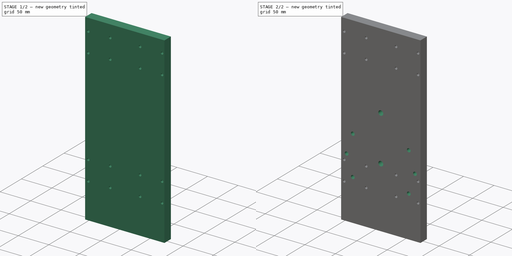
[diagram: build sequence overview — one tinted view per stage of 2, left to right]
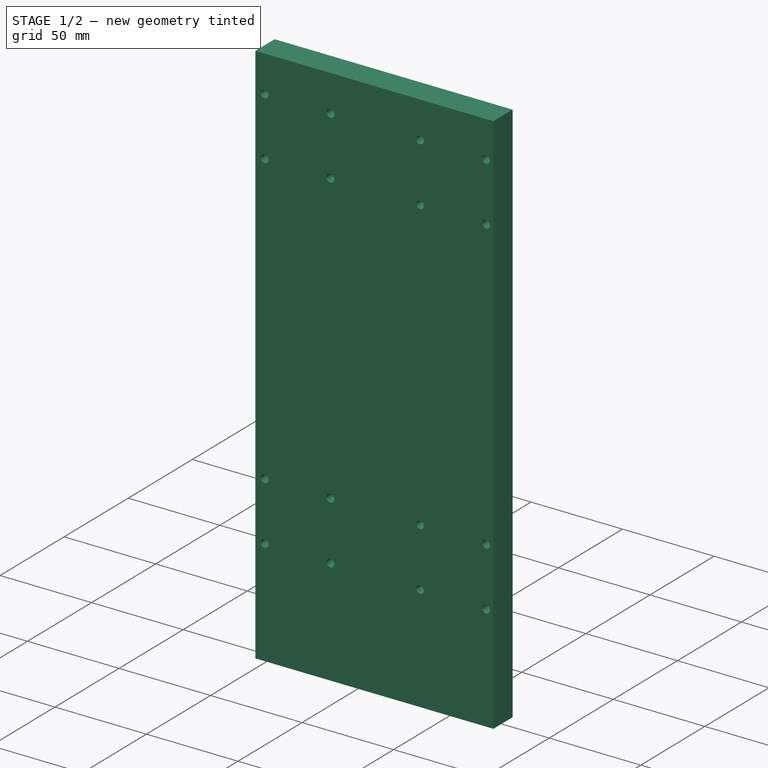
[diagram: stage 1 of 2 — iso view after this stage's code; geometry added in this stage tinted green]
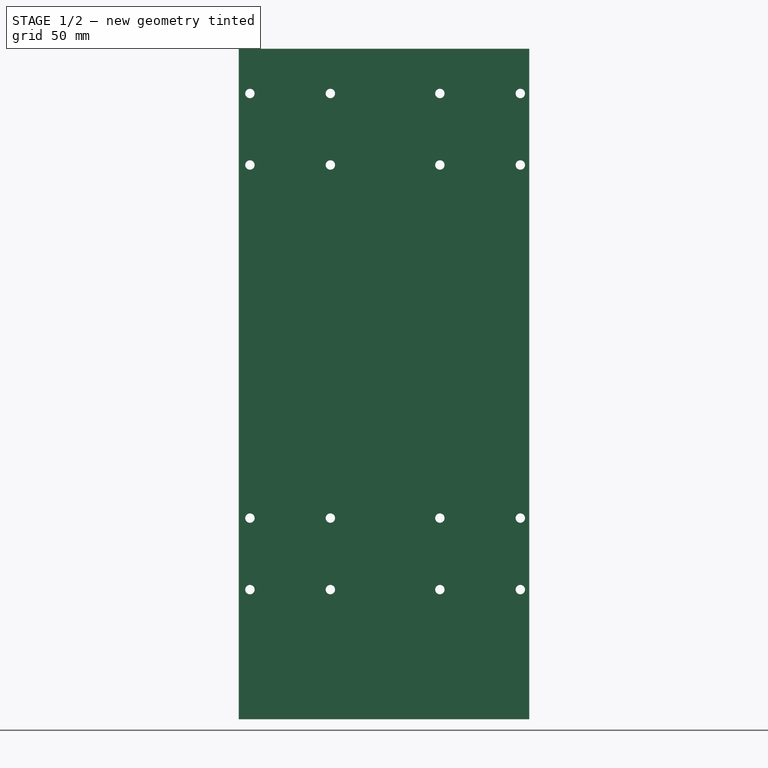
[diagram: stage 1 of 2 — front view after this stage's code; geometry added in this stage tinted green]
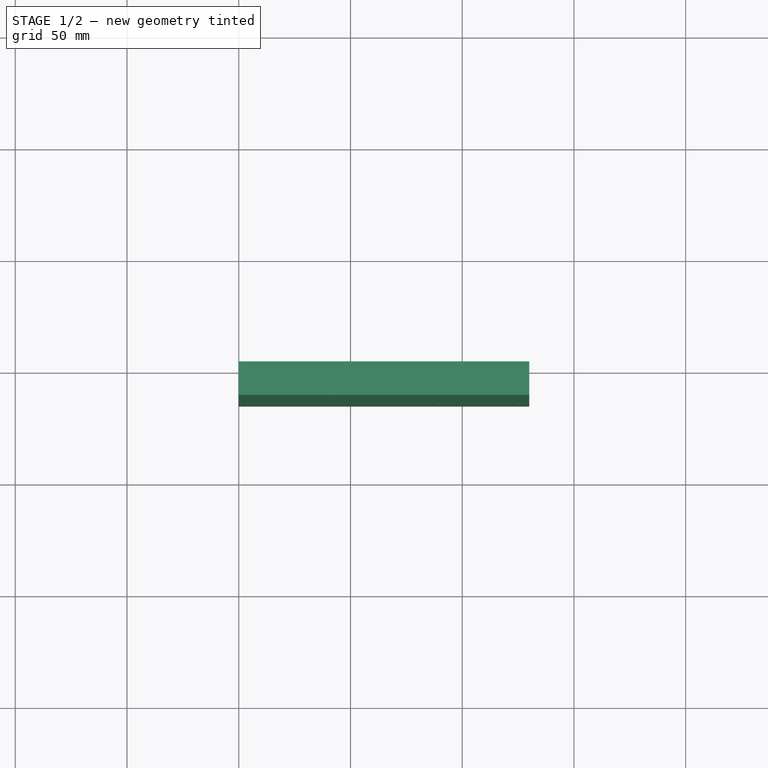
[diagram: stage 1 of 2 — top view after this stage's code; geometry added in this stage tinted green]
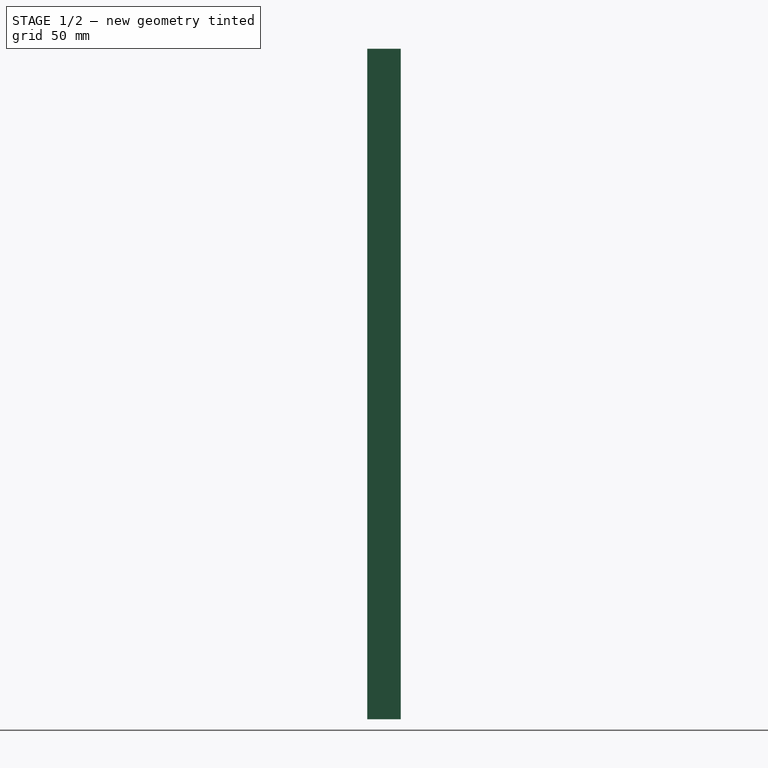
[diagram: stage 1 of 2 — right view after this stage's code; geometry added in this stage tinted green]
FCSTD DOCUMENT  (FreeCAD 0.21R33771 (Git))
Label: PiastraCarroUtensile
License: All rights reserved
LicenseURL: http://en.wikipedia.org/wiki/All_rights_reserved
objects: Sketcher::SketchObject×3, PartDesign::Pocket×2, PartDesign::Pad×1, PartDesign::CoordinateSystem×1, PartDesign::Body×1
note: 11 computed .brp shape members not serialized (recipe doc carries the construction recipe); baked Part::Feature solids carry a one-line shape summary decoded from their .brp

FEATURE [Sketcher::SketchObject] Sketch
  FullyConstrained = true
  MapMode = 5
  Placement = pos=(0,0,0) rot=(1,0,0;1.5708rad)
  Support = -> [XZ_Plane]
  sketch-geometry (4):
    g0: LineSegment StartX=0 StartY=0 StartZ=0 EndX=130 EndY=0 EndZ=0
    g1: LineSegment StartX=130 StartY=0 StartZ=0 EndX=130 EndY=300 EndZ=0
    g2: LineSegment StartX=130 StartY=300 StartZ=0 EndX=0 EndY=300 EndZ=0
    g3: LineSegment StartX=0 StartY=300 StartZ=0 EndX=0 EndY=0 EndZ=0
  constraints (11):
    c: Coincident(g0,g1)
    c: Coincident(g1,g2)
    c: Coincident(g2,g3)
    c: Coincident(g3,g0)
    c: Horizontal(g0)
    c: Horizontal(g2)
    c: Vertical(g1)
    c: Vertical(g3)
    c: Coincident(g0,g-1)
    c: DistanceX(g0,g0) = 130
    c: DistanceY(g3,g3) = 300
FEATURE [PartDesign::Pad] Pad
  Direction = (0,-1,-2e-16)
  Length = 15
  Length2 = 100
  Placement = pos=(0,0,0) rot=(1,0,0;1.5708rad)
  Profile = -> Sketch
  ReferenceAxis = -> Sketch [N_Axis]
  Type = 0
FEATURE [Sketcher::SketchObject] Sketch001
  FullyConstrained = false
  MapMode = 5
  Placement = pos=(0,-15,0) rot=(1,0,0;1.5708rad)
  Support = -> [Pad]
  sketch-geometry (31):
    g0: Circle CenterX=5 CenterY=280 CenterZ=0 NormalX=0 NormalY=0 NormalZ=1 AngleXU=0 Radius=2.1
    g1: Circle CenterX=41 CenterY=280 CenterZ=0 NormalX=0 NormalY=0 NormalZ=1 AngleXU=0 Radius=2.1
    g2: LineSegment StartX=5 StartY=280 StartZ=0 EndX=41 EndY=280 EndZ=0
    g3: Circle CenterX=5 CenterY=248 CenterZ=0 NormalX=0 NormalY=0 NormalZ=1 AngleXU=0 Radius=2.1
    g4: LineSegment StartX=5 StartY=280 StartZ=0 EndX=5 EndY=248 EndZ=0
    g5: Circle CenterX=41 CenterY=248 CenterZ=0 NormalX=0 NormalY=0 NormalZ=1 AngleXU=0 Radius=2.1
    g6: LineSegment StartX=5 StartY=248 StartZ=0 EndX=41 EndY=248 EndZ=0
    g7: Circle CenterX=90 CenterY=280 CenterZ=0 NormalX=0 NormalY=0 NormalZ=1 AngleXU=0 Radius=2.1
    g8: Circle CenterX=126 CenterY=280 CenterZ=0 NormalX=0 NormalY=0 NormalZ=1 AngleXU=0 Radius=2.1
    g9: LineSegment StartX=90 StartY=280 StartZ=0 EndX=126 EndY=280 EndZ=0
    g10: Circle CenterX=90 CenterY=248 CenterZ=0 NormalX=0 NormalY=0 NormalZ=1 AngleXU=0 Radius=2.1
    g11: LineSegment StartX=90 StartY=280 StartZ=0 EndX=90 EndY=248 EndZ=0
    g12: Circle CenterX=126 CenterY=248 CenterZ=0 NormalX=0 NormalY=0 NormalZ=1 AngleXU=0 Radius=2.1
    g13: LineSegment StartX=90 StartY=248 StartZ=0 EndX=126 EndY=248 EndZ=0
    g14: LineSegment StartX=5 StartY=280 StartZ=0 EndX=90 EndY=280 EndZ=0
    g15: Circle CenterX=5 CenterY=90 CenterZ=0 NormalX=0 NormalY=0 NormalZ=1 AngleXU=0 Radius=2.1
    g16: Circle CenterX=41 CenterY=90 CenterZ=0 NormalX=0 NormalY=0 NormalZ=1 AngleXU=0 Radius=2.1
    g17: LineSegment StartX=5 StartY=90 StartZ=0 EndX=41 EndY=90 EndZ=0
    g18: Circle CenterX=5 CenterY=58 CenterZ=0 NormalX=0 NormalY=0 NormalZ=1 AngleXU=0 Radius=2.1
    g19: LineSegment StartX=5 StartY=90 StartZ=0 EndX=5 EndY=58 EndZ=0
    g20: Circle CenterX=41 CenterY=58 CenterZ=0 NormalX=0 NormalY=0 NormalZ=1 AngleXU=0 Radius=2.1
    g21: LineSegment StartX=5 StartY=58 StartZ=0 EndX=41 EndY=58 EndZ=0
    g22: LineSegment StartX=5 StartY=280 StartZ=0 EndX=5 EndY=90 EndZ=0
    g23: Circle CenterX=90 CenterY=90 CenterZ=0 NormalX=0 NormalY=0 NormalZ=1 AngleXU=0 Radius=2.1
    g24: Circle CenterX=126 CenterY=90 CenterZ=0 NormalX=0 NormalY=0 NormalZ=1 AngleXU=0 Radius=2.1
    g25: LineSegment StartX=90 StartY=90 StartZ=0 EndX=126 EndY=90 EndZ=0
    g26: Circle CenterX=90 CenterY=58 CenterZ=0 NormalX=0 NormalY=0 NormalZ=1 AngleXU=0 Radius=2.1
    g27: LineSegment StartX=90 StartY=90 StartZ=0 EndX=90 EndY=58 EndZ=0
    g28: Circle CenterX=126 CenterY=58 CenterZ=0 NormalX=0 NormalY=0 NormalZ=1 AngleXU=0 Radius=2.1
    g29: LineSegment StartX=90 StartY=58 StartZ=0 EndX=126 EndY=58 EndZ=0
    g30: LineSegment StartX=5 StartY=90 StartZ=0 EndX=90 EndY=90 EndZ=0
  constraints (77):
    c: Coincident(g0,g2)
    c: Coincident(g1,g2)
    c: Distance(g2) = 36
    c: Angle(g2) = 0
    c: Coincident(g0,g4)
    c: Coincident(g3,g4)
    c: Distance(g4) = 32
    c: Perpendicular(g4,g2)
    c: Coincident(g3,g6)
    c: Coincident(g5,g6)
    c: Equal(g2,g6)
    c: Parallel(g6,g2)
    c: Coincident(g7,g9)
    c: Coincident(g8,g9)
    c: Distance(g9) = 36
    c: Angle(g9) = 0
    c: Coincident(g7,g11)
    c: Coincident(g10,g11)
    c: Distance(g11) = 32
    c: Perpendicular(g11,g9)
    c: Coincident(g10,g13)
    c: Coincident(g12,g13)
    c: Equal(g9,g13)
    c: Parallel(g13,g9)
    c: Coincident(g0,g14)
    c: Coincident(g7,g14)
    c: Distance(g14) = 85
    c: Angle(g14) = 0
    c: Coincident(g15,g17)
    c: Coincident(g16,g17)
    c: Distance(g17) = 36
    c: Angle(g17) = 0
    c: Coincident(g15,g19)
    c: Coincident(g18,g19)
    c: Distance(g19) = 32
    c: Perpendicular(g19,g17)
    c: Coincident(g18,g21)
    c: Coincident(g20,g21)
    c: Equal(g17,g21)
    c: Parallel(g21,g17)
    c: Coincident(g0,g22)
    c: Coincident(g15,g22)
    c: Distance(g22) = 190
    c: Perpendicular(g22,g14)
    c: Coincident(g23,g25)
    c: Coincident(g24,g25)
    c: Distance(g25) = 36
    c: Angle(g25) = 0
    c: Coincident(g23,g27)
    c: Coincident(g26,g27)
    c: Perpendicular(g27,g25)
    c: Coincident(g26,g29)
    c: Coincident(g28,g29)
    c: Equal(g25,g29)
    c: Parallel(g29,g25)
    c: Coincident(g15,g30)
    c: Coincident(g23,g30)
    c: Equal(g14,g30)
    c: Parallel(g30,g14)
    c: DistanceY(g-1,g0) = 280
    c: DistanceX(g-1,g0) = 5
    c: Radius(g0) = 2.1
    c: Equal(g3,g0)
    c: Equal(g0,g1)
    c: Equal(g1,g5)
    c: Equal(g5,g10)
    c: Equal(g10,g12)
    c: Equal(g12,g8)
    c: Equal(g8,g7)
    c: Equal(g16,g23)
    c: Equal(g23,g24)
    c: Equal(g24,g18)
    c: Equal(g18,g20)
    c: Equal(g15,g16)
    c: Equal(g24,g28)
    c: Equal(g28,g26)
    c: Equal(g27,g19)
FEATURE [PartDesign::Pocket] Pocket
  BaseFeature = -> Pad
  Direction = (0,1,-2e-16)
  Length = 0
  Length2 = 100
  Placement = pos=(0,0,0) rot=(1,0,0;1.5708rad)
  Profile = -> Sketch001
  Type = 1
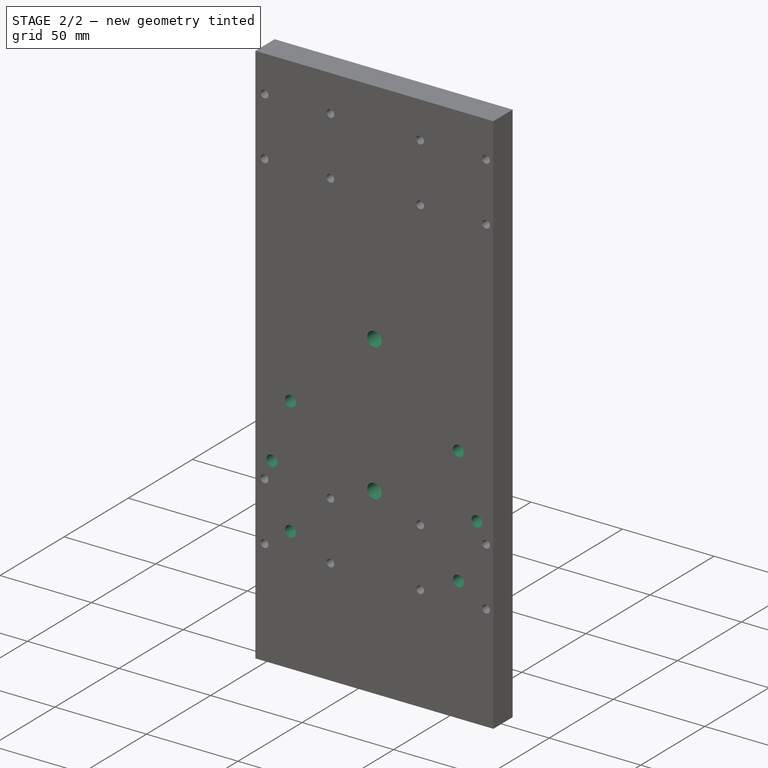
[diagram: stage 2 of 2 — iso view after this stage's code; geometry added in this stage tinted green]
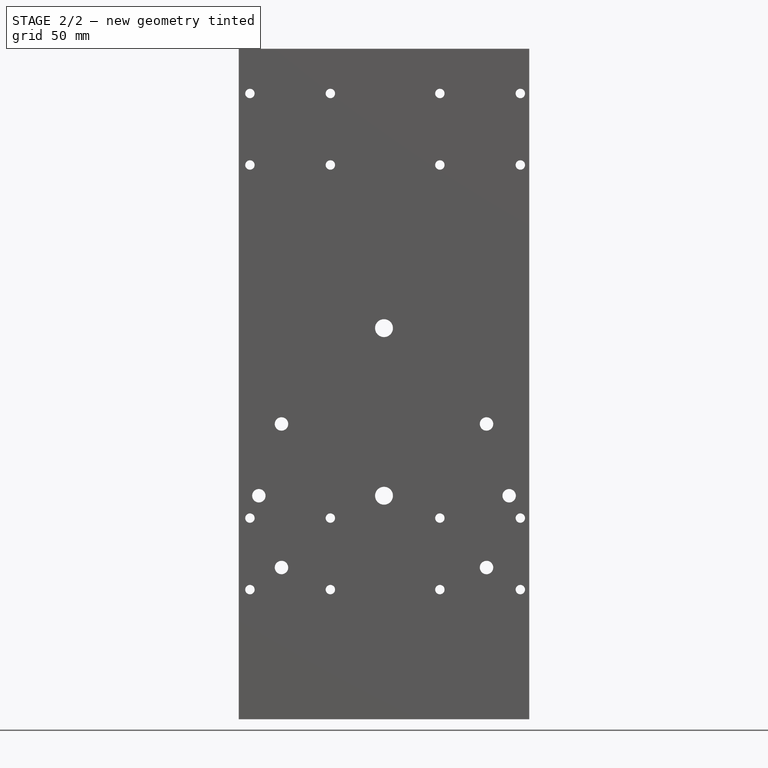
[diagram: stage 2 of 2 — front view after this stage's code; geometry added in this stage tinted green]
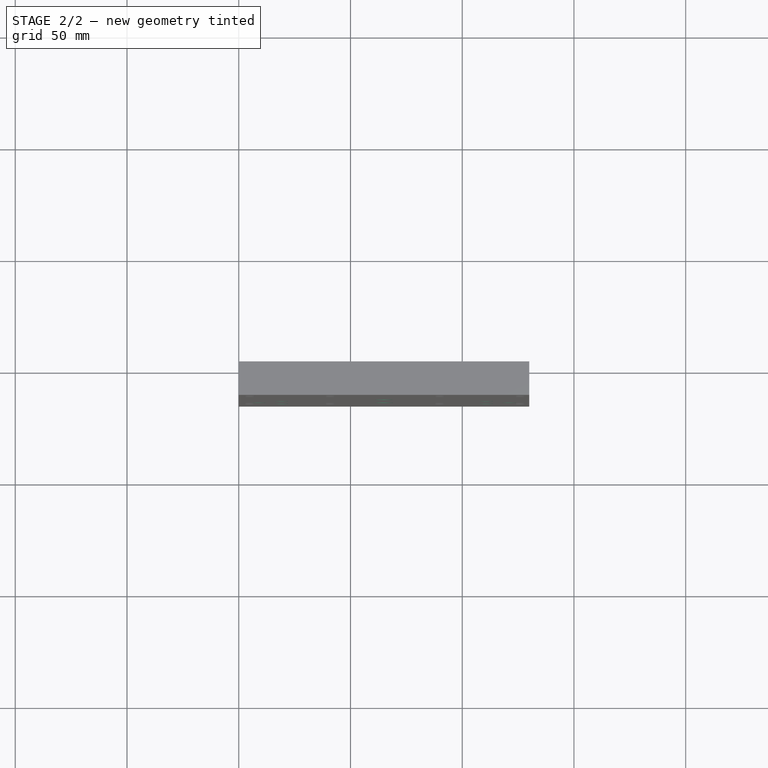
[diagram: stage 2 of 2 — top view after this stage's code; geometry added in this stage tinted green]
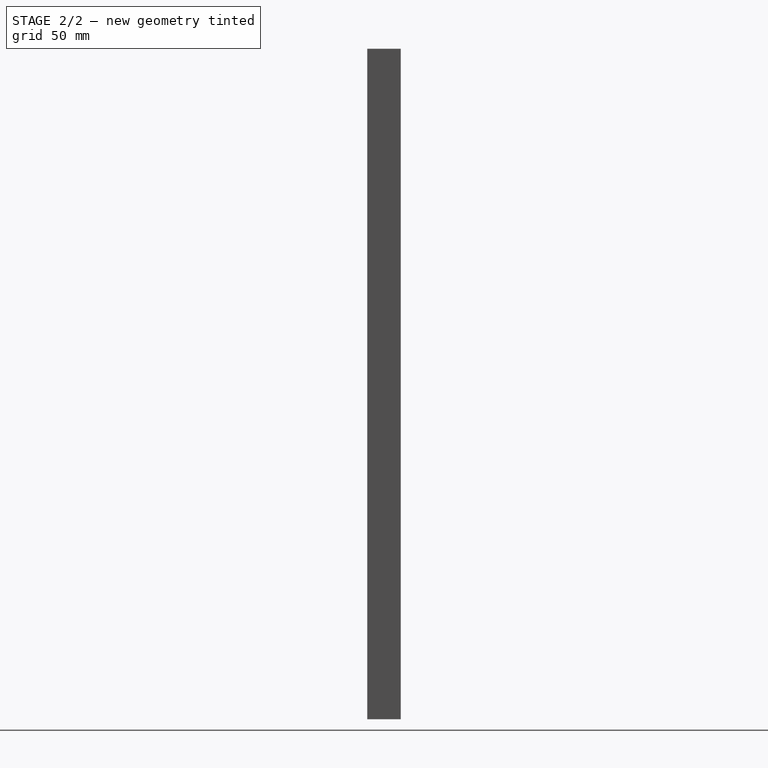
[diagram: stage 2 of 2 — right view after this stage's code; geometry added in this stage tinted green]
FEATURE [Sketcher::SketchObject] Sketch002
  FullyConstrained = false
  MapMode = 5
  Placement = pos=(0,-15,0) rot=(1,0,0;1.5708rad)
  Support = -> [Pocket]
  sketch-geometry (13):
    g0: LineSegment StartX=9 StartY=100 StartZ=0 EndX=121 EndY=100 EndZ=0
    g1: Circle CenterX=9 CenterY=100 CenterZ=0 NormalX=0 NormalY=0 NormalZ=1 AngleXU=0 Radius=3
    g2: Circle CenterX=121 CenterY=100 CenterZ=0 NormalX=0 NormalY=0 NormalZ=1 AngleXU=0 Radius=3
    g3: LineSegment StartX=65 StartY=100 StartZ=0 EndX=65 EndY=175 EndZ=0
    g4: Circle CenterX=65 CenterY=175 CenterZ=0 NormalX=0 NormalY=0 NormalZ=1 AngleXU=0 Radius=4
    g5: Circle CenterX=65 CenterY=100 CenterZ=0 NormalX=0 NormalY=0 NormalZ=1 AngleXU=0 Radius=4
    g6: Circle CenterX=65 CenterY=100 CenterZ=0 NormalX=0 NormalY=0 NormalZ=1 AngleXU=0 Radius=56
    g7: LineSegment StartX=11.6907 StartY=137.328 StartZ=0 EndX=123.11 EndY=59.3109 EndZ=0
    g8: LineSegment StartX=120.653 StartY=138.969 StartZ=0 EndX=8.20799 EndY=60.2338 EndZ=0
    g9: Circle CenterX=19.1275 CenterY=132.12 CenterZ=0 NormalX=0 NormalY=0 NormalZ=1 AngleXU=0 Radius=3
    g10: Circle CenterX=110.873 CenterY=67.8797 CenterZ=0 NormalX=0 NormalY=0 NormalZ=1 AngleXU=0 Radius=3
    g11: Circle CenterX=19.1275 CenterY=67.8797 CenterZ=0 NormalX=0 NormalY=0 NormalZ=1 AngleXU=0 Radius=3
    g12: Circle CenterX=110.873 CenterY=132.12 CenterZ=0 NormalX=0 NormalY=0 NormalZ=1 AngleXU=0 Radius=3
  constraints (33):
    c: DistanceX(g0,g0) = 112
    c: Coincident(g1,g0)
    c: Coincident(g2,g0)
    c: Radius(g1) = 3
    c: Equal(g1,g2)
    c: DistanceY(g-1,g2) = 100
    c: PointOnObject(g3,g0)
    c: DistanceY(g3,g3) = 75
    c: Coincident(g4,g3)
    c: Radius(g4) = 4
    c: Coincident(g5,g3)
    c: Vertical(g3)
    c: Symmetric(g1,g2,g3)
    c: Radius(g5) = 4
    c: DistanceX(g-1,g5) = 65
    c: Coincident(g6,g5)
    c: PointOnObject(g2,g6)
    c: PointOnObject(g9,g6)
    c: PointOnObject(g10,g6)
    c: PointOnObject(g11,g6)
    c: PointOnObject(g12,g6)
    c: PointOnObject(g12,g8)
    c: PointOnObject(g11,g8)
    c: PointOnObject(g9,g7)
    c: PointOnObject(g10,g7)
    c: PointOnObject(g5,g7)
    c: PointOnObject(g5,g8)
    c: Radius(g9) = 3
    c: Equal(g9,g12)
    c: Equal(g12,g10)
    c: Equal(g10,g11)
    c: Angle(g7,g0) = 0.610865
    c: Angle(g8,g0) = 2.53073
FEATURE [PartDesign::Pocket] Pocket001
  BaseFeature = -> Pocket
  Direction = (0,1,-2e-16)
  Length = 5
  Length2 = 5
  Placement = pos=(0,0,0) rot=(1,0,0;1.5708rad)
  Profile = -> Sketch002
  ReferenceAxis = -> Sketch002 [N_Axis]
  Type = 1
FEATURE [PartDesign::CoordinateSystem] LCS_PiastraCarro
  AttacherType = Attacher::AttachEngine3D
  MapMode = 11
  Placement = pos=(65,-15,100) rot=(0.57735,-0.57735,0.57735;2.0944rad)
  Support = -> [Pocket001]
FEATURE [PartDesign::Body] Body
  Group = -> [Sketch,Pad,Sketch001,Pocket,LCS_PiastraCarro,Sketch002,Pocket001]
  Origin = -> Origin
  Tip = -> Pocket001
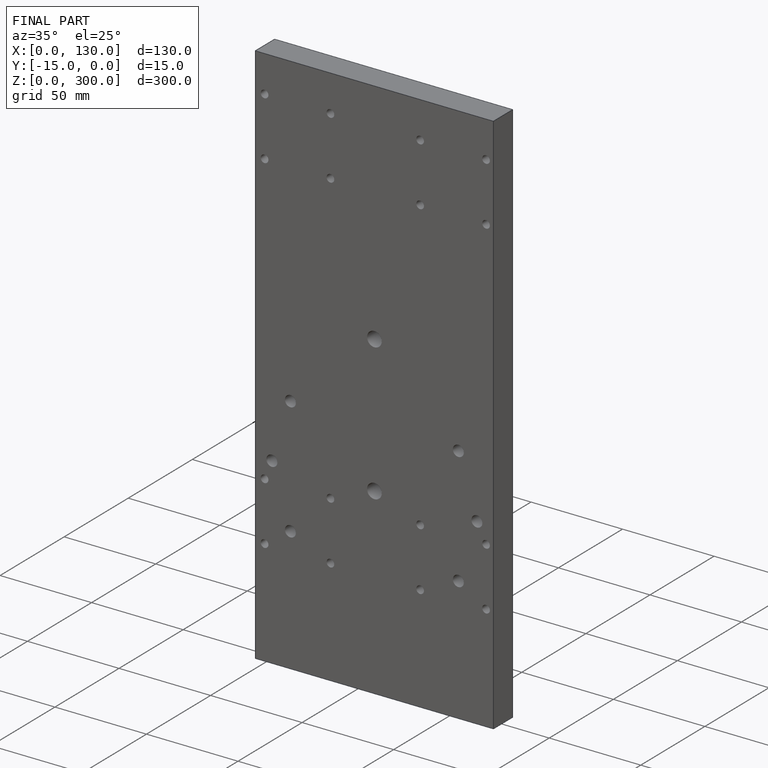
[diagram: finished part — iso view with bounding-box wireframe]
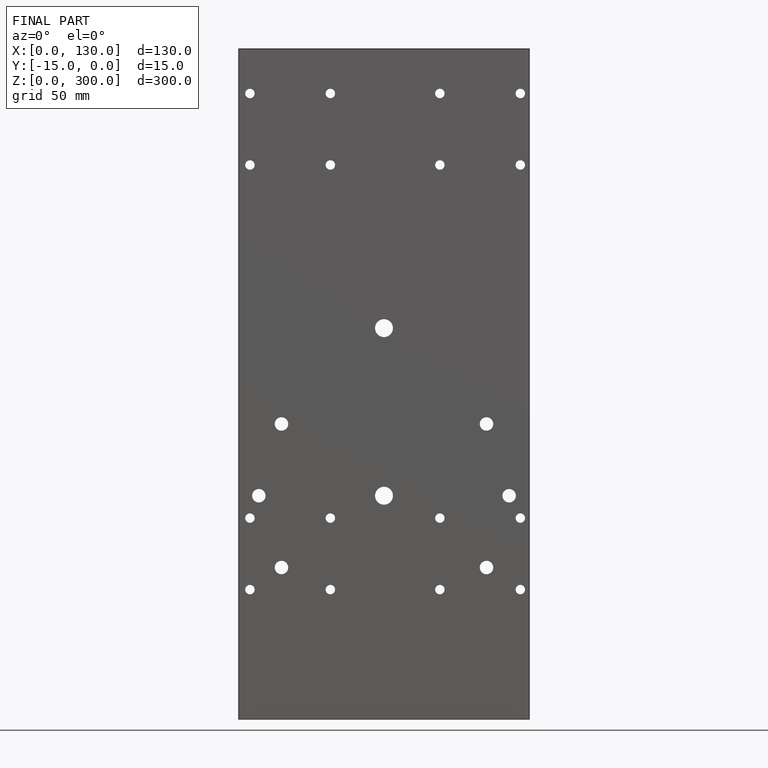
[diagram: finished part — front view with bounding-box wireframe]
